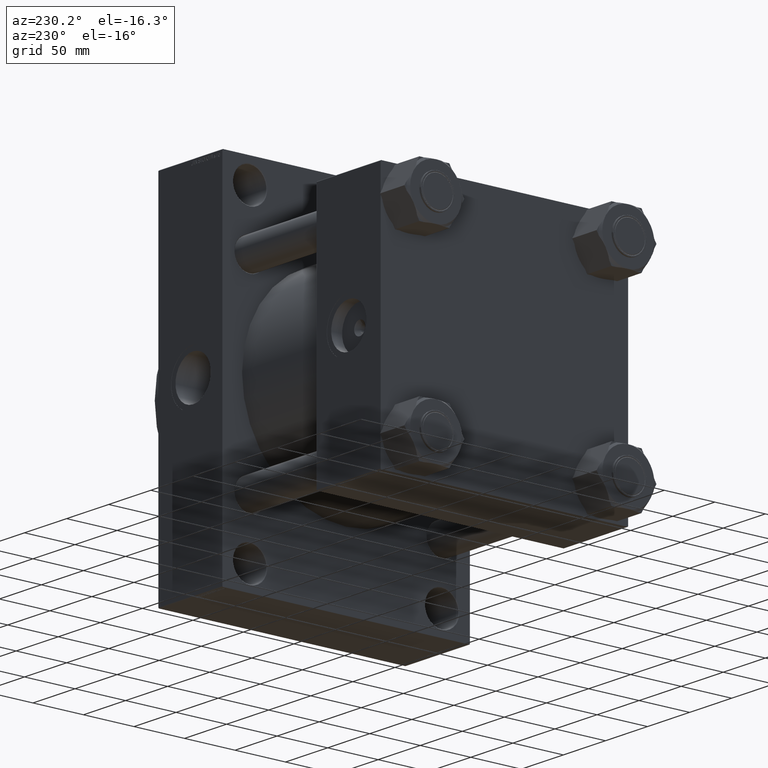
[diagram: clean part render]
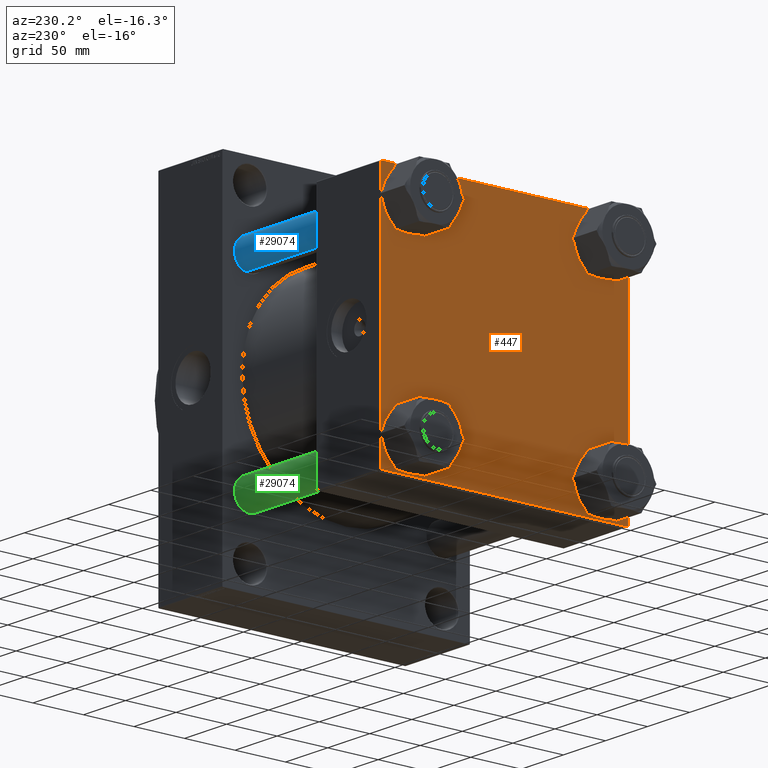
[diagram: same view with three faces highlighted in distinct colors, each labeled with its STEP entity id]
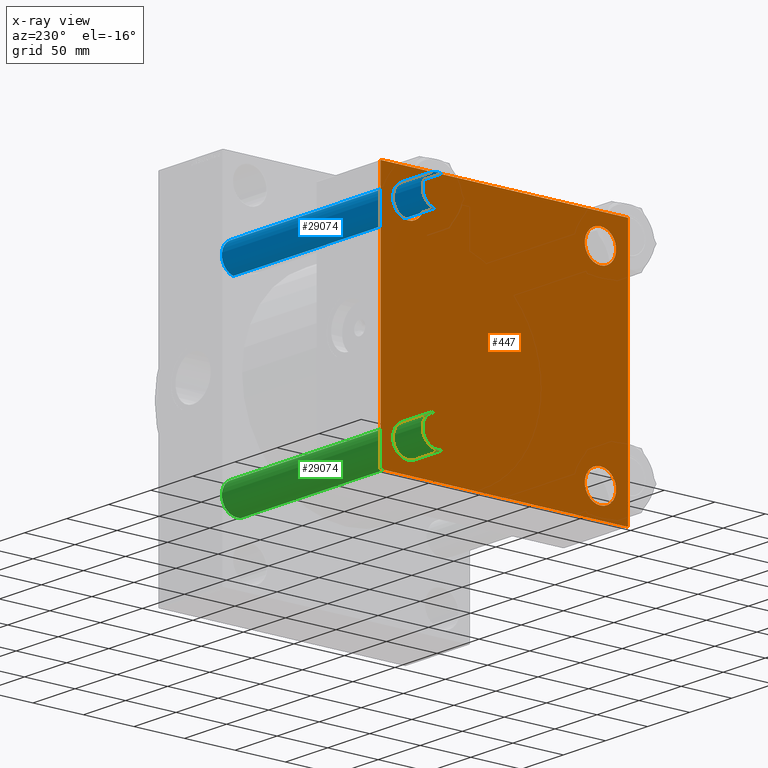
[diagram: x-ray of the same camera — body ghosted, the three highlighted faces saturated]
A machine part, auxiliary view with three faces highlighted in distinct colors.
The next image is the same camera in x-ray (body ghosted, the three faces saturated) — at least one of them is partly hidden behind the body in this view.
Their STEP definitions:

[orange] entity #447 — the highlighted planar face has unit normal (-1, 0, 0).
#38 = VERTEX_POINT ( 'NONE', #19343 ) ;
#166 = VECTOR ( 'NONE', #11835, 1000.000000000000000 ) ;
#265 = VECTOR ( 'NONE', #12169, 1000.000000000000000 ) ;
#447 = ADVANCED_FACE ( 'NONE', ( #13261, #35896, #6031, #10353, #47200 ), #14208, .T. ) ;
#765 = ORIENTED_EDGE ( 'NONE', *, *, #29398, .T. ) ;
#1059 = EDGE_LOOP ( 'NONE', ( #46888, #39134 ) ) ;
#1807 = VERTEX_POINT ( 'NONE', #33426 ) ;
#2039 = CARTESIAN_POINT ( 'NONE',  ( 0.000000000000000000, 122.2499999999932641, 122.2500000000068496 ) ) ;
#2647 = DIRECTION ( 'NONE',  ( 0.000000000000000000, 0.000000000000000000, 1.000000000000000000 ) ) ;
#3192 = DIRECTION ( 'NONE',  ( -0.000000000000000000, 0.7071067811865867636, 0.7071067811865082708 ) ) ;
#3214 = ORIENTED_EDGE ( 'NONE', *, *, #6175, .T. ) ;
#3233 = DIRECTION ( 'NONE',  ( 0.000000000000000000, 0.000000000000000000, -1.000000000000000000 ) ) ;
#4384 = ORIENTED_EDGE ( 'NONE', *, *, #41780, .T. ) ;
#4433 = ORIENTED_EDGE ( 'NONE', *, *, #13850, .T. ) ;
#4615 = VERTEX_POINT ( 'NONE', #34794 ) ;
#5349 = CIRCLE ( 'NONE', #32251, 15.50000000000001421 ) ;
#5472 = VERTEX_POINT ( 'NONE', #14011 ) ;
#6031 = FACE_BOUND ( 'NONE', #34176, .T. ) ;
#6102 = ORIENTED_EDGE ( 'NONE', *, *, #30284, .T. ) ;
#6175 = EDGE_CURVE ( 'NONE', #20999, #28248, #10470, .T. ) ;
#6859 = VERTEX_POINT ( 'NONE', #34437 ) ;
#6932 = CIRCLE ( 'NONE', #24586, 15.50000000000001421 ) ;
#7139 = DIRECTION ( 'NONE',  ( 0.000000000000000000, -0.7071067811865474617, 0.7071067811865474617 ) ) ;
#7140 = AXIS2_PLACEMENT_3D ( 'NONE', #13731, #17325, #2647 ) ;
#7602 = EDGE_LOOP ( 'NONE', ( #3214, #14049, #17730, #4433, #31610, #765, #27860, #38559 ) ) ;
#7756 = CARTESIAN_POINT ( 'NONE',  ( 0.000000000000000000, 95.09999999999999432, -95.10000000000002274 ) ) ;
#7813 = ORIENTED_EDGE ( 'NONE', *, *, #42571, .T. ) ;
#8566 = EDGE_LOOP ( 'NONE', ( #37422, #7813 ) ) ;
#9520 = DIRECTION ( 'NONE',  ( 0.000000000000000000, 0.000000000000000000, 1.000000000000000000 ) ) ;
#10227 = CARTESIAN_POINT ( 'NONE',  ( 0.000000000000000000, 122.5000000000000568, 122.5000000000000284 ) ) ;
#10244 = VERTEX_POINT ( 'NONE', #37562 ) ;
#10353 = FACE_BOUND ( 'NONE', #23833, .T. ) ;
#10470 = LINE ( 'NONE', #10227, #22559 ) ;
#10492 = DIRECTION ( 'NONE',  ( 1.000000000000000000, -0.000000000000000000, -0.000000000000000000 ) ) ;
#11237 = CARTESIAN_POINT ( 'NONE',  ( 0.000000000000000000, 122.2500000000000142, -122.2500000000000142 ) ) ;
#11835 = DIRECTION ( 'NONE',  ( 0.000000000000000000, -1.000000000000000000, -2.265761274745216987E-16 ) ) ;
#11861 = EDGE_CURVE ( 'NONE', #35906, #5472, #41989, .T. ) ;
#11864 = LINE ( 'NONE', #30872, #24722 ) ;
#11972 = CIRCLE ( 'NONE', #29634, 15.50000000000001421 ) ;
#12162 = ORIENTED_EDGE ( 'NONE', *, *, #47314, .T. ) ;
#12169 = DIRECTION ( 'NONE',  ( 0.000000000000000000, -1.000000000000000000, -1.132880637372608740E-16 ) ) ;
#12181 = DIRECTION ( 'NONE',  ( 0.000000000000000000, 0.7071067811865868746, -0.7071067811865081598 ) ) ;
#13017 = AXIS2_PLACEMENT_3D ( 'NONE', #47582, #10492, #32646 ) ;
#13261 = FACE_BOUND ( 'NONE', #8566, .T. ) ;
#13674 = VERTEX_POINT ( 'NONE', #17771 ) ;
#13731 = CARTESIAN_POINT ( 'NONE',  ( 0.000000000000000000, 0.000000000000000000, 0.000000000000000000 ) ) ;
#13850 = EDGE_CURVE ( 'NONE', #22435, #38, #47599, .T. ) ;
#14011 = CARTESIAN_POINT ( 'NONE',  ( 0.000000000000000000, -95.09999999999996589, 79.60000000000003695 ) ) ;
#14049 = ORIENTED_EDGE ( 'NONE', *, *, #14895, .T. ) ;
#14116 = CARTESIAN_POINT ( 'NONE',  ( 0.000000000000000000, -122.2500000000000142, -122.2500000000000142 ) ) ;
#14208 = PLANE ( 'NONE',  #7140 ) ;
#14895 = EDGE_CURVE ( 'NONE', #28248, #36178, #26159, .T. ) ;
#15312 = DIRECTION ( 'NONE',  ( 0.000000000000000000, 0.000000000000000000, 1.000000000000000000 ) ) ;
#16088 = CARTESIAN_POINT ( 'NONE',  ( 0.000000000000000000, -95.09999999999996589, 95.10000000000005116 ) ) ;
#16270 = CARTESIAN_POINT ( 'NONE',  ( 0.000000000000000000, -95.09999999999996589, 95.10000000000005116 ) ) ;
#17325 = DIRECTION ( 'NONE',  ( -1.000000000000000000, 0.000000000000000000, 0.000000000000000000 ) ) ;
#17730 = ORIENTED_EDGE ( 'NONE', *, *, #34795, .T. ) ;
#17771 = CARTESIAN_POINT ( 'NONE',  ( 0.000000000000000000, 95.09999999999999432, -79.60000000000000853 ) ) ;
#18125 = LINE ( 'NONE', #32585, #40730 ) ;
#18571 = DIRECTION ( 'NONE',  ( 1.000000000000000000, -0.000000000000000000, -0.000000000000000000 ) ) ;
#18748 = VERTEX_POINT ( 'NONE', #41117 ) ;
#19047 = CARTESIAN_POINT ( 'NONE',  ( 0.000000000000000000, 122.5000000000000568, -122.5000000000000000 ) ) ;
#19260 = CARTESIAN_POINT ( 'NONE',  ( 0.000000000000000000, 95.09999999999999432, 110.6000000000000369 ) ) ;
#19343 = CARTESIAN_POINT ( 'NONE',  ( 0.000000000000000000, -122.5000000000000000, -122.0000000000000568 ) ) ;
#20495 = AXIS2_PLACEMENT_3D ( 'NONE', #43035, #46186, #31262 ) ;
#20537 = CARTESIAN_POINT ( 'NONE',  ( 0.000000000000000000, 122.5000000000000568, -121.9999999999999432 ) ) ;
#20999 = VERTEX_POINT ( 'NONE', #21075 ) ;
#21075 = CARTESIAN_POINT ( 'NONE',  ( 0.000000000000000000, 122.5000000000000568, 122.0000000000000853 ) ) ;
#21113 = AXIS2_PLACEMENT_3D ( 'NONE', #7756, #18571, #22421 ) ;
#21786 = CIRCLE ( 'NONE', #36410, 15.50000000000001421 ) ;
#22421 = DIRECTION ( 'NONE',  ( 0.000000000000000000, 0.000000000000000000, 1.000000000000000000 ) ) ;
#22435 = VERTEX_POINT ( 'NONE', #29478 ) ;
#22514 = CARTESIAN_POINT ( 'NONE',  ( 0.000000000000000000, 95.09999999999999432, -95.10000000000002274 ) ) ;
#22559 = VECTOR ( 'NONE', #3233, 1000.000000000000000 ) ;
#22840 = CARTESIAN_POINT ( 'NONE',  ( 0.000000000000000000, 95.09999999999999432, 95.10000000000002274 ) ) ;
#23163 = EDGE_CURVE ( 'NONE', #1807, #25536, #35136, .T. ) ;
#23433 = CIRCLE ( 'NONE', #21113, 15.50000000000001421 ) ;
#23833 = EDGE_LOOP ( 'NONE', ( #12162, #6102 ) ) ;
#24586 = AXIS2_PLACEMENT_3D ( 'NONE', #22840, #26000, #41159 ) ;
#24722 = VECTOR ( 'NONE', #27492, 1000.000000000000000 ) ;
#25323 = CIRCLE ( 'NONE', #13017, 15.50000000000001421 ) ;
#25536 = VERTEX_POINT ( 'NONE', #31000 ) ;
#26000 = DIRECTION ( 'NONE',  ( 1.000000000000000000, -0.000000000000000000, -0.000000000000000000 ) ) ;
#26159 = LINE ( 'NONE', #11237, #36554 ) ;
#26461 = VERTEX_POINT ( 'NONE', #19260 ) ;
#26505 = CARTESIAN_POINT ( 'NONE',  ( 0.000000000000000000, 122.0000000000000568, -122.5000000000000000 ) ) ;
#27236 = ORIENTED_EDGE ( 'NONE', *, *, #30060, .T. ) ;
#27492 = DIRECTION ( 'NONE',  ( 0.000000000000000000, -1.132880637372608493E-16, -1.000000000000000000 ) ) ;
#27860 = ORIENTED_EDGE ( 'NONE', *, *, #41148, .F. ) ;
#28248 = VERTEX_POINT ( 'NONE', #20537 ) ;
#29033 = EDGE_CURVE ( 'NONE', #25536, #1807, #25323, .T. ) ;
#29398 = EDGE_CURVE ( 'NONE', #10244, #4615, #18125, .T. ) ;
#29478 = CARTESIAN_POINT ( 'NONE',  ( 0.000000000000000000, -122.0000000000000000, -122.5000000000000568 ) ) ;
#29634 = AXIS2_PLACEMENT_3D ( 'NONE', #34337, #41080, #15312 ) ;
#29842 = VECTOR ( 'NONE', #7139, 1000.000000000000114 ) ;
#30060 = EDGE_CURVE ( 'NONE', #18748, #13674, #5349, .T. ) ;
#30284 = EDGE_CURVE ( 'NONE', #37579, #26461, #6932, .T. ) ;
#30705 = LINE ( 'NONE', #45391, #265 ) ;
#30710 = DIRECTION ( 'NONE',  ( 0.000000000000000000, 0.000000000000000000, 1.000000000000000000 ) ) ;
#30787 = DIRECTION ( 'NONE',  ( 1.000000000000000000, -0.000000000000000000, -0.000000000000000000 ) ) ;
#30872 = CARTESIAN_POINT ( 'NONE',  ( 0.000000000000000000, -122.4999999999999716, 122.5000000000000000 ) ) ;
#31000 = CARTESIAN_POINT ( 'NONE',  ( 0.000000000000000000, -95.09999999999996589, -110.6000000000000654 ) ) ;
#31262 = DIRECTION ( 'NONE',  ( 0.000000000000000000, 0.000000000000000000, 1.000000000000000000 ) ) ;
#31610 = ORIENTED_EDGE ( 'NONE', *, *, #33014, .F. ) ;
#32251 = AXIS2_PLACEMENT_3D ( 'NONE', #22514, #33855, #30710 ) ;
#32585 = CARTESIAN_POINT ( 'NONE',  ( 0.000000000000000000, -122.2499999999932641, 122.2500000000068212 ) ) ;
#32646 = DIRECTION ( 'NONE',  ( 0.000000000000000000, 0.000000000000000000, 1.000000000000000000 ) ) ;
#33014 = EDGE_CURVE ( 'NONE', #10244, #38, #11864, .T. ) ;
#33335 = EDGE_CURVE ( 'NONE', #6859, #20999, #45169, .T. ) ;
#33426 = CARTESIAN_POINT ( 'NONE',  ( 0.000000000000000000, -95.09999999999996589, -79.60000000000003695 ) ) ;
#33855 = DIRECTION ( 'NONE',  ( 1.000000000000000000, -0.000000000000000000, -0.000000000000000000 ) ) ;
#34105 = DIRECTION ( 'NONE',  ( -0.000000000000000000, -0.7071067811865474617, -0.7071067811865474617 ) ) ;
#34176 = EDGE_LOOP ( 'NONE', ( #4384, #27236 ) ) ;
#34337 = CARTESIAN_POINT ( 'NONE',  ( 0.000000000000000000, 95.09999999999999432, 95.10000000000002274 ) ) ;
#34437 = CARTESIAN_POINT ( 'NONE',  ( 0.000000000000000000, 122.0000000000000568, 122.5000000000000284 ) ) ;
#34794 = CARTESIAN_POINT ( 'NONE',  ( 0.000000000000000000, -121.9999999999999716, 122.5000000000000000 ) ) ;
#34795 = EDGE_CURVE ( 'NONE', #36178, #22435, #44108, .T. ) ;
#35136 = CIRCLE ( 'NONE', #20495, 15.50000000000001421 ) ;
#35896 = FACE_BOUND ( 'NONE', #1059, .T. ) ;
#35906 = VERTEX_POINT ( 'NONE', #38381 ) ;
#36178 = VERTEX_POINT ( 'NONE', #26505 ) ;
#36410 = AXIS2_PLACEMENT_3D ( 'NONE', #16270, #41813, #9520 ) ;
#36554 = VECTOR ( 'NONE', #34105, 1000.000000000000114 ) ;
#37422 = ORIENTED_EDGE ( 'NONE', *, *, #11861, .T. ) ;
#37562 = CARTESIAN_POINT ( 'NONE',  ( 0.000000000000000000, -122.4999999999999716, 122.0000000000001137 ) ) ;
#37579 = VERTEX_POINT ( 'NONE', #43984 ) ;
#38381 = CARTESIAN_POINT ( 'NONE',  ( 0.000000000000000000, -95.09999999999996589, 110.6000000000000654 ) ) ;
#38559 = ORIENTED_EDGE ( 'NONE', *, *, #33335, .T. ) ;
#39134 = ORIENTED_EDGE ( 'NONE', *, *, #29033, .T. ) ;
#39336 = VECTOR ( 'NONE', #12181, 1000.000000000000000 ) ;
#40730 = VECTOR ( 'NONE', #3192, 1000.000000000000114 ) ;
#41080 = DIRECTION ( 'NONE',  ( 1.000000000000000000, -0.000000000000000000, -0.000000000000000000 ) ) ;
#41117 = CARTESIAN_POINT ( 'NONE',  ( 0.000000000000000000, 95.09999999999999432, -110.6000000000000369 ) ) ;
#41148 = EDGE_CURVE ( 'NONE', #6859, #4615, #30705, .T. ) ;
#41159 = DIRECTION ( 'NONE',  ( 0.000000000000000000, 0.000000000000000000, 1.000000000000000000 ) ) ;
#41780 = EDGE_CURVE ( 'NONE', #13674, #18748, #23433, .T. ) ;
#41813 = DIRECTION ( 'NONE',  ( 1.000000000000000000, -0.000000000000000000, -0.000000000000000000 ) ) ;
#41989 = CIRCLE ( 'NONE', #42731, 15.50000000000001421 ) ;
#42571 = EDGE_CURVE ( 'NONE', #5472, #35906, #21786, .T. ) ;
#42731 = AXIS2_PLACEMENT_3D ( 'NONE', #16088, #30787, #44526 ) ;
#43035 = CARTESIAN_POINT ( 'NONE',  ( 0.000000000000000000, -95.09999999999996589, -95.10000000000005116 ) ) ;
#43984 = CARTESIAN_POINT ( 'NONE',  ( 0.000000000000000000, 95.09999999999999432, 79.60000000000000853 ) ) ;
#44108 = LINE ( 'NONE', #19047, #166 ) ;
#44526 = DIRECTION ( 'NONE',  ( 0.000000000000000000, 0.000000000000000000, 1.000000000000000000 ) ) ;
#45169 = LINE ( 'NONE', #2039, #39336 ) ;
#45391 = CARTESIAN_POINT ( 'NONE',  ( 0.000000000000000000, 122.5000000000000568, 122.5000000000000284 ) ) ;
#46186 = DIRECTION ( 'NONE',  ( 1.000000000000000000, -0.000000000000000000, -0.000000000000000000 ) ) ;
#46888 = ORIENTED_EDGE ( 'NONE', *, *, #23163, .T. ) ;
#47200 = FACE_OUTER_BOUND ( 'NONE', #7602, .T. ) ;
#47314 = EDGE_CURVE ( 'NONE', #26461, #37579, #11972, .T. ) ;
#47582 = CARTESIAN_POINT ( 'NONE',  ( 0.000000000000000000, -95.09999999999996589, -95.10000000000005116 ) ) ;
#47599 = LINE ( 'NONE', #14116, #29842 ) ;

[blue] entity #29074 — the highlighted cylindrical surface (edge-blend (fillet) strip) has radius 15 mm, axis along (-1, -0, 0).
#1086 = CARTESIAN_POINT ( 'NONE',  ( 0.000000000000000000, 0.000000000000000000, 239.0000000000000000 ) ) ;
#1417 = AXIS2_PLACEMENT_3D ( 'NONE', #11045, #36580, #22110 ) ;
#1455 = CARTESIAN_POINT ( 'NONE',  ( 15.00000000000000000, 1.836970198721029194E-15, 239.0000000000000000 ) ) ;
#3303 = VECTOR ( 'NONE', #24999, 1000.000000000000000 ) ;
#3977 = DIRECTION ( 'NONE',  ( -0.000000000000000000, -0.000000000000000000, -1.000000000000000000 ) ) ;
#4348 = CARTESIAN_POINT ( 'NONE',  ( 15.00000000000000000, 1.836970198721029194E-15, 0.5000000000002502443 ) ) ;
#4563 = AXIS2_PLACEMENT_3D ( 'NONE', #1086, #3977, #12397 ) ;
#5027 = DIRECTION ( 'NONE',  ( -0.000000000000000000, -0.000000000000000000, 1.000000000000000000 ) ) ;
#8445 = VERTEX_POINT ( 'NONE', #20092 ) ;
#10187 = ORIENTED_EDGE ( 'NONE', *, *, #13530, .T. ) ;
#11039 = CIRCLE ( 'NONE', #25650, 15.00000000000000000 ) ;
#11045 = CARTESIAN_POINT ( 'NONE',  ( 0.000000000000000000, 0.000000000000000000, 238.5000000000000568 ) ) ;
#12026 = DIRECTION ( 'NONE',  ( 1.000000000000000000, 0.000000000000000000, 0.000000000000000000 ) ) ;
#12333 = VERTEX_POINT ( 'NONE', #45067 ) ;
#12397 = DIRECTION ( 'NONE',  ( -1.000000000000000000, 0.000000000000000000, 0.000000000000000000 ) ) ;
#13530 = EDGE_CURVE ( 'NONE', #8445, #12333, #43682, .T. ) ;
#16126 = DIRECTION ( 'NONE',  ( -0.000000000000000000, -0.000000000000000000, -1.000000000000000000 ) ) ;
#16651 = VERTEX_POINT ( 'NONE', #24177 ) ;
#18755 = CARTESIAN_POINT ( 'NONE',  ( 0.000000000000000000, 0.000000000000000000, 0.5000000000002502443 ) ) ;
#19739 = LINE ( 'NONE', #1455, #33831 ) ;
#20092 = CARTESIAN_POINT ( 'NONE',  ( -15.00000000000000000, 0.000000000000000000, 238.5000000000000568 ) ) ;
#22110 = DIRECTION ( 'NONE',  ( 1.000000000000000000, 0.000000000000000000, 0.000000000000000000 ) ) ;
#24177 = CARTESIAN_POINT ( 'NONE',  ( -15.00000000000000000, 0.000000000000000000, 0.5000000000002502443 ) ) ;
#24999 = DIRECTION ( 'NONE',  ( -0.000000000000000000, -0.000000000000000000, -1.000000000000000000 ) ) ;
#25650 = AXIS2_PLACEMENT_3D ( 'NONE', #18755, #5027, #12026 ) ;
#26451 = VERTEX_POINT ( 'NONE', #4348 ) ;
#28375 = LINE ( 'NONE', #43062, #3303 ) ;
#29074 = ADVANCED_FACE ( 'NONE', ( #37930 ), #45390, .T. ) ;
#29913 = EDGE_CURVE ( 'NONE', #12333, #26451, #19739, .T. ) ;
#33831 = VECTOR ( 'NONE', #16126, 1000.000000000000000 ) ;
#34235 = ORIENTED_EDGE ( 'NONE', *, *, #42299, .T. ) ;
#36580 = DIRECTION ( 'NONE',  ( 0.000000000000000000, 0.000000000000000000, -1.000000000000000000 ) ) ;
#37930 = FACE_OUTER_BOUND ( 'NONE', #43719, .T. ) ;
#40724 = EDGE_CURVE ( 'NONE', #8445, #16651, #28375, .T. ) ;
#42299 = EDGE_CURVE ( 'NONE', #26451, #16651, #11039, .T. ) ;
#42631 = ORIENTED_EDGE ( 'NONE', *, *, #40724, .F. ) ;
#43062 = CARTESIAN_POINT ( 'NONE',  ( -15.00000000000000000, 0.000000000000000000, 239.0000000000000000 ) ) ;
#43682 = CIRCLE ( 'NONE', #1417, 15.00000000000000000 ) ;
#43719 = EDGE_LOOP ( 'NONE', ( #10187, #45276, #34235, #42631 ) ) ;
#45067 = CARTESIAN_POINT ( 'NONE',  ( 15.00000000000000000, 1.836970198721029194E-15, 238.5000000000000568 ) ) ;
#45276 = ORIENTED_EDGE ( 'NONE', *, *, #29913, .T. ) ;
#45390 = CYLINDRICAL_SURFACE ( 'NONE', #4563, 15.00000000000000000 ) ;

[green] entity #29074 — the highlighted cylindrical surface (edge-blend (fillet) strip) has radius 15 mm, axis along (1, -0, 0).
#1086 = CARTESIAN_POINT ( 'NONE',  ( 0.000000000000000000, 0.000000000000000000, 239.0000000000000000 ) ) ;
#1417 = AXIS2_PLACEMENT_3D ( 'NONE', #11045, #36580, #22110 ) ;
#1455 = CARTESIAN_POINT ( 'NONE',  ( 15.00000000000000000, 1.836970198721029194E-15, 239.0000000000000000 ) ) ;
#3303 = VECTOR ( 'NONE', #24999, 1000.000000000000000 ) ;
#3977 = DIRECTION ( 'NONE',  ( -0.000000000000000000, -0.000000000000000000, -1.000000000000000000 ) ) ;
#4348 = CARTESIAN_POINT ( 'NONE',  ( 15.00000000000000000, 1.836970198721029194E-15, 0.5000000000002502443 ) ) ;
#4563 = AXIS2_PLACEMENT_3D ( 'NONE', #1086, #3977, #12397 ) ;
#5027 = DIRECTION ( 'NONE',  ( -0.000000000000000000, -0.000000000000000000, 1.000000000000000000 ) ) ;
#8445 = VERTEX_POINT ( 'NONE', #20092 ) ;
#10187 = ORIENTED_EDGE ( 'NONE', *, *, #13530, .T. ) ;
#11039 = CIRCLE ( 'NONE', #25650, 15.00000000000000000 ) ;
#11045 = CARTESIAN_POINT ( 'NONE',  ( 0.000000000000000000, 0.000000000000000000, 238.5000000000000568 ) ) ;
#12026 = DIRECTION ( 'NONE',  ( 1.000000000000000000, 0.000000000000000000, 0.000000000000000000 ) ) ;
#12333 = VERTEX_POINT ( 'NONE', #45067 ) ;
#12397 = DIRECTION ( 'NONE',  ( -1.000000000000000000, 0.000000000000000000, 0.000000000000000000 ) ) ;
#13530 = EDGE_CURVE ( 'NONE', #8445, #12333, #43682, .T. ) ;
#16126 = DIRECTION ( 'NONE',  ( -0.000000000000000000, -0.000000000000000000, -1.000000000000000000 ) ) ;
#16651 = VERTEX_POINT ( 'NONE', #24177 ) ;
#18755 = CARTESIAN_POINT ( 'NONE',  ( 0.000000000000000000, 0.000000000000000000, 0.5000000000002502443 ) ) ;
#19739 = LINE ( 'NONE', #1455, #33831 ) ;
#20092 = CARTESIAN_POINT ( 'NONE',  ( -15.00000000000000000, 0.000000000000000000, 238.5000000000000568 ) ) ;
#22110 = DIRECTION ( 'NONE',  ( 1.000000000000000000, 0.000000000000000000, 0.000000000000000000 ) ) ;
#24177 = CARTESIAN_POINT ( 'NONE',  ( -15.00000000000000000, 0.000000000000000000, 0.5000000000002502443 ) ) ;
#24999 = DIRECTION ( 'NONE',  ( -0.000000000000000000, -0.000000000000000000, -1.000000000000000000 ) ) ;
#25650 = AXIS2_PLACEMENT_3D ( 'NONE', #18755, #5027, #12026 ) ;
#26451 = VERTEX_POINT ( 'NONE', #4348 ) ;
#28375 = LINE ( 'NONE', #43062, #3303 ) ;
#29074 = ADVANCED_FACE ( 'NONE', ( #37930 ), #45390, .T. ) ;
#29913 = EDGE_CURVE ( 'NONE', #12333, #26451, #19739, .T. ) ;
#33831 = VECTOR ( 'NONE', #16126, 1000.000000000000000 ) ;
#34235 = ORIENTED_EDGE ( 'NONE', *, *, #42299, .T. ) ;
#36580 = DIRECTION ( 'NONE',  ( 0.000000000000000000, 0.000000000000000000, -1.000000000000000000 ) ) ;
#37930 = FACE_OUTER_BOUND ( 'NONE', #43719, .T. ) ;
#40724 = EDGE_CURVE ( 'NONE', #8445, #16651, #28375, .T. ) ;
#42299 = EDGE_CURVE ( 'NONE', #26451, #16651, #11039, .T. ) ;
#42631 = ORIENTED_EDGE ( 'NONE', *, *, #40724, .F. ) ;
#43062 = CARTESIAN_POINT ( 'NONE',  ( -15.00000000000000000, 0.000000000000000000, 239.0000000000000000 ) ) ;
#43682 = CIRCLE ( 'NONE', #1417, 15.00000000000000000 ) ;
#43719 = EDGE_LOOP ( 'NONE', ( #10187, #45276, #34235, #42631 ) ) ;
#45067 = CARTESIAN_POINT ( 'NONE',  ( 15.00000000000000000, 1.836970198721029194E-15, 238.5000000000000568 ) ) ;
#45276 = ORIENTED_EDGE ( 'NONE', *, *, #29913, .T. ) ;
#45390 = CYLINDRICAL_SURFACE ( 'NONE', #4563, 15.00000000000000000 ) ;